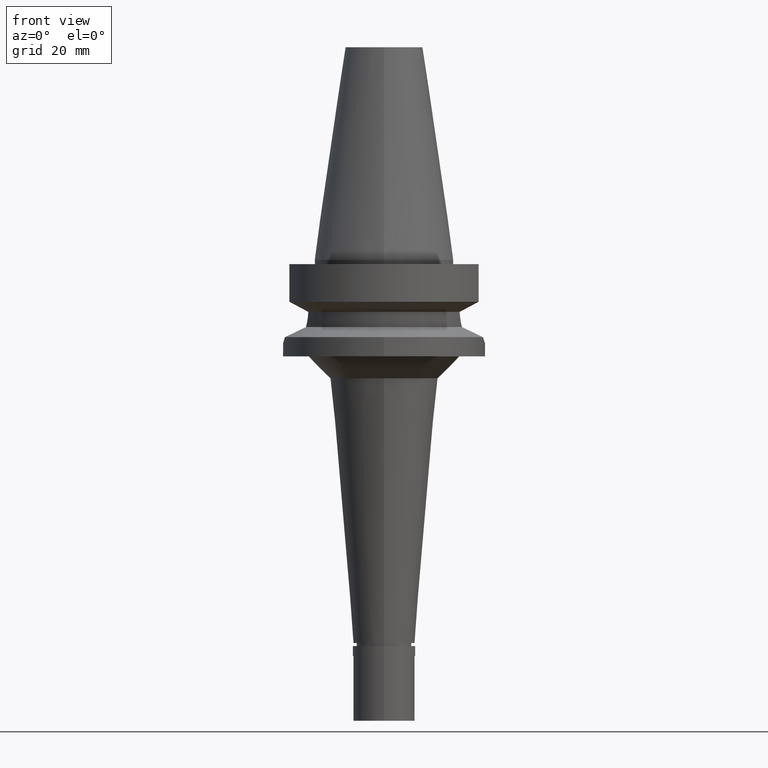
[diagram: clean part render]
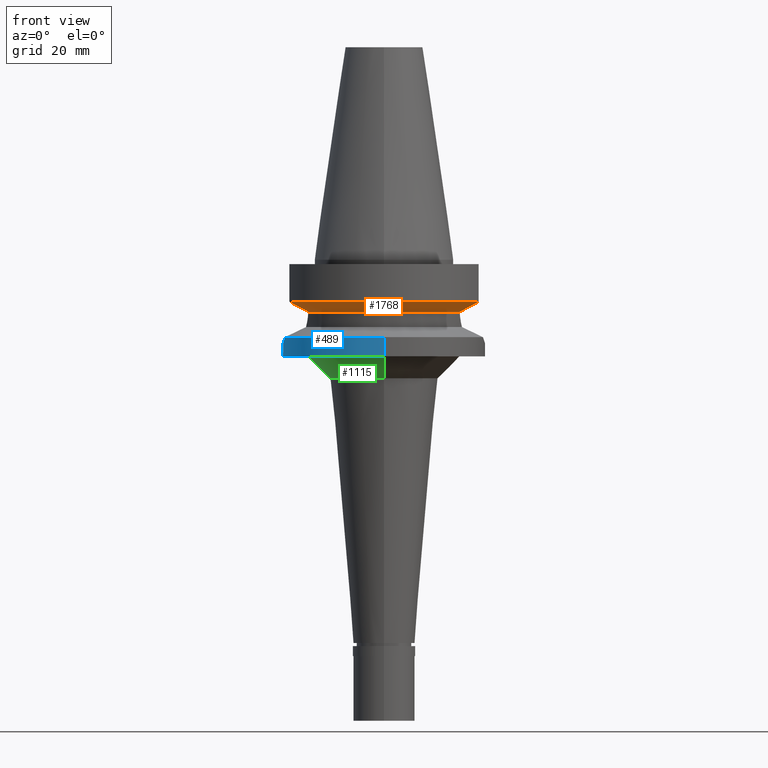
[diagram: same view with three faces highlighted in distinct colors, each labeled with its STEP entity id]
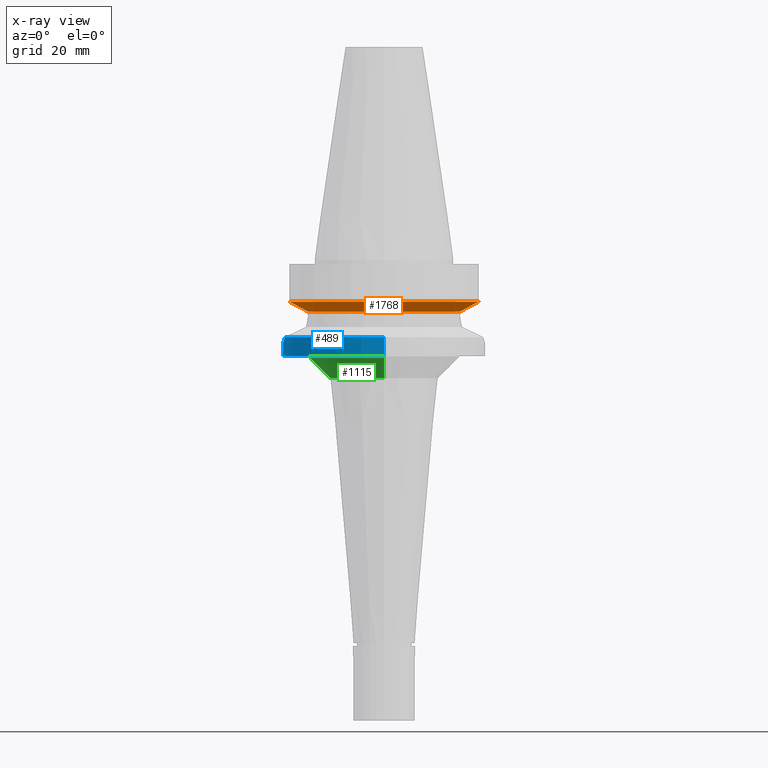
[diagram: x-ray of the same camera — body ghosted, the three highlighted faces saturated]
A machine part, front view with three faces highlighted in distinct colors.
The next image is the same camera in x-ray (body ghosted, the three faces saturated) — at least one of them is partly hidden behind the body in this view.
Their STEP definitions:

[orange] entity #1768 — the highlighted conical surface has half-angle 60 deg.
#12 = ORIENTED_EDGE ( 'NONE', *, *, #1299, .F. ) ;
#50 = CARTESIAN_POINT ( 'NONE',  ( -17.23531622871000124, -7.996491146968002006, -11.87660607765999998 ) ) ;
#155 = CARTESIAN_POINT ( 'NONE',  ( -18.96738966519999892, -8.049994318072998922, -10.95000099924999937 ) ) ;
#193 = DIRECTION ( 'NONE',  ( 0.0000000000000000000, 0.0000000000000000000, 1.000000000000000000 ) ) ;
#245 = VERTEX_POINT ( 'NONE', #1227 ) ;
#264 = CARTESIAN_POINT ( 'NONE',  ( 18.96736186693999926, -8.050001277873001015, -10.94999977540000025 ) ) ;
#267 = AXIS2_PLACEMENT_3D ( 'NONE', #1894, #2778, #997 ) ;
#434 = CIRCLE ( 'NONE', #798, 23.00000000000000000 ) ;
#469 = CARTESIAN_POINT ( 'NONE',  ( -21.54524325238000060, -8.049999577366000025, -9.567211146628999074 ) ) ;
#574 = CARTESIAN_POINT ( 'NONE',  ( 17.72682660578003322, -8.027186146920309184, -11.61172867019492472 ) ) ;
#599 = VERTEX_POINT ( 'NONE', #469 ) ;
#623 = DIRECTION ( 'NONE',  ( 0.0000000000000000000, -1.000000000000000000, 0.0000000000000000000 ) ) ;
#692 = DIRECTION ( 'NONE',  ( 0.0000000000000000000, 1.000000000000000000, 0.0000000000000000000 ) ) ;
#772 = CARTESIAN_POINT ( 'NONE',  ( -18.96738966519999892, -8.049994318072998922, -10.95000099924999937 ) ) ;
#798 = AXIS2_PLACEMENT_3D ( 'NONE', #2731, #193, #623 ) ;
#860 = CARTESIAN_POINT ( 'NONE',  ( -21.54524325238000060, -8.049999577366000025, -9.567211146628999074 ) ) ;
#930 = AXIS2_PLACEMENT_3D ( 'NONE', #1125, #1386, #692 ) ;
#935 = VERTEX_POINT ( 'NONE', #1016 ) ;
#946 = EDGE_CURVE ( 'NONE', #245, #1634, #1544, .T. ) ;
#968 = CARTESIAN_POINT ( 'NONE',  ( 21.54524309446999908, -8.050000000002000888, -9.567208369710998639 ) ) ;
#971 = ORIENTED_EDGE ( 'NONE', *, *, #1230, .F. ) ;
#997 = DIRECTION ( 'NONE',  ( 0.0000000000000000000, -1.000000000000000000, 0.0000000000000000000 ) ) ;
#1016 = CARTESIAN_POINT ( 'NONE',  ( 17.23531135313999840, -7.996501749111999402, -11.87660739352999961 ) ) ;
#1040 = B_SPLINE_CURVE_WITH_KNOTS ( 'NONE', 3,
 ( #264, #2320, #2765, #1425 ),
 .UNSPECIFIED., .F., .F.,
 ( 4, 4 ),
 ( 0.0000000000000000000, 1.000000000000000000 ),
 .UNSPECIFIED. ) ;
#1103 = CARTESIAN_POINT ( 'NONE',  ( 18.96736186693999926, -8.050001277873001015, -10.94999977540000025 ) ) ;
#1125 = CARTESIAN_POINT ( 'NONE',  ( 0.0000000000000000000, 1.093341284896999988E-14, -10.72190890808999875 ) ) ;
#1138 = CARTESIAN_POINT ( 'NONE',  ( -19.78174442233868291, -8.049991903459016385, -10.51718567402809690 ) ) ;
#1169 = ORIENTED_EDGE ( 'NONE', *, *, #1214, .T. ) ;
#1214 = EDGE_CURVE ( 'NONE', #599, #1634, #2643, .T. ) ;
#1227 = CARTESIAN_POINT ( 'NONE',  ( -17.23531622871000124, -7.996491146968002006, -11.87660607765999998 ) ) ;
#1230 = EDGE_CURVE ( 'NONE', #599, #1296, #434, .T. ) ;
#1296 = VERTEX_POINT ( 'NONE', #968 ) ;
#1299 = EDGE_CURVE ( 'NONE', #935, #245, #1896, .T. ) ;
#1314 = CARTESIAN_POINT ( 'NONE',  ( 18.96736186693999926, -8.050001277873001015, -10.94999977540000025 ) ) ;
#1337 = ORIENTED_EDGE ( 'NONE', *, *, #1519, .T. ) ;
#1386 = DIRECTION ( 'NONE',  ( 0.0000000000000000000, 0.0000000000000000000, 1.000000000000000000 ) ) ;
#1401 = CARTESIAN_POINT ( 'NONE',  ( -17.72598984667062538, -8.027133614841753584, -11.61218199030514597 ) ) ;
#1425 = CARTESIAN_POINT ( 'NONE',  ( 21.54524309446999908, -8.050000000002000888, -9.567208369710998639 ) ) ;
#1480 = CARTESIAN_POINT ( 'NONE',  ( 17.23531135313999840, -7.996501749111999402, -11.87660739352999961 ) ) ;
#1519 = EDGE_CURVE ( 'NONE', #2848, #1296, #1040, .T. ) ;
#1535 = ORIENTED_EDGE ( 'NONE', *, *, #946, .F. ) ;
#1544 = B_SPLINE_CURVE_WITH_KNOTS ( 'NONE', 3,
 ( #50, #1401, #1650, #2340 ),
 .UNSPECIFIED., .F., .F.,
 ( 4, 4 ),
 ( 0.0000000000000000000, 1.000000000000000000 ),
 .UNSPECIFIED. ) ;
#1634 = VERTEX_POINT ( 'NONE', #155 ) ;
#1650 = CARTESIAN_POINT ( 'NONE',  ( -18.30334765883396031, -8.049999956192328554, -11.30291652902797850 ) ) ;
#1768 = ADVANCED_FACE ( 'NONE', ( #2049 ), #1850, .T. ) ;
#1779 = CARTESIAN_POINT ( 'NONE',  ( -20.64098922449849383, -8.049999155425599184, -10.05625859809538980 ) ) ;
#1850 = CONICAL_SURFACE ( 'NONE', #930, 21.00000000000000000, 1.047197551196400456 ) ;
#1894 = CARTESIAN_POINT ( 'NONE',  ( 0.0000000000000000000, 1.093341284896999988E-14, -11.87660944646999894 ) ) ;
#1896 = CIRCLE ( 'NONE', #267, 19.00000000000000000 ) ;
#2049 = FACE_OUTER_BOUND ( 'NONE', #2696, .T. ) ;
#2197 = ORIENTED_EDGE ( 'NONE', *, *, #2714, .F. ) ;
#2227 = CARTESIAN_POINT ( 'NONE',  ( 18.30417677704669899, -8.050000009833846448, -11.30245973841521945 ) ) ;
#2320 = CARTESIAN_POINT ( 'NONE',  ( 19.78176446227738339, -8.050001299918164932, -10.51717305795229151 ) ) ;
#2340 = CARTESIAN_POINT ( 'NONE',  ( -18.96738966519999892, -8.049994318072998922, -10.95000099924999937 ) ) ;
#2539 = B_SPLINE_CURVE_WITH_KNOTS ( 'NONE', 3,
 ( #1314, #2227, #574, #1480 ),
 .UNSPECIFIED., .F., .F.,
 ( 4, 4 ),
 ( 0.0000000000000000000, 1.000000000000000000 ),
 .UNSPECIFIED. ) ;
#2643 = B_SPLINE_CURVE_WITH_KNOTS ( 'NONE', 3,
 ( #860, #1779, #1138, #772 ),
 .UNSPECIFIED., .F., .F.,
 ( 4, 4 ),
 ( 0.0000000000000000000, 1.000000000000000000 ),
 .UNSPECIFIED. ) ;
#2696 = EDGE_LOOP ( 'NONE', ( #1535, #12, #2197, #1337, #971, #1169 ) ) ;
#2714 = EDGE_CURVE ( 'NONE', #2848, #935, #2539, .T. ) ;
#2731 = CARTESIAN_POINT ( 'NONE',  ( 0.0000000000000000000, 1.093341284896999988E-14, -9.567208369710998639 ) ) ;
#2765 = CARTESIAN_POINT ( 'NONE',  ( 20.64101735201231591, -8.050004185258069711, -10.05624233374762966 ) ) ;
#2778 = DIRECTION ( 'NONE',  ( 0.0000000000000000000, 0.0000000000000000000, -1.000000000000000000 ) ) ;
#2848 = VERTEX_POINT ( 'NONE', #1103 ) ;

[blue] entity #489 — the highlighted cylindrical surface (partial cylindrical patch) has radius 23 mm, axis along (0, 0, -1).
#75 = CARTESIAN_POINT ( 'NONE',  ( -22.63166614962851497, 4.117127006979952597, -17.88191370993376594 ) ) ;
#83 = CARTESIAN_POINT ( 'NONE',  ( 0.0000000000000000000, 23.00000000000000000, -22.00000000000000000 ) ) ;
#90 = CARTESIAN_POINT ( 'NONE',  ( -23.00030100865154381, 0.3640111239025690670, -19.00088867300707918 ) ) ;
#91 = ORIENTED_EDGE ( 'NONE', *, *, #1002, .F. ) ;
#135 = CARTESIAN_POINT ( 'NONE',  ( -22.81109336931087128, -3.019388381317360537, -18.44551689367371594 ) ) ;
#140 = CARTESIAN_POINT ( 'NONE',  ( -22.77692701622773441, 3.197994040606511490, -18.34023868707903304 ) ) ;
#166 = VERTEX_POINT ( 'NONE', #83 ) ;
#225 = DIRECTION ( 'NONE',  ( -0.9807766722643714852, 0.1951335930638943839, 0.0000000000000000000 ) ) ;
#259 = DIRECTION ( 'NONE',  ( 0.0000000000000000000, 0.0000000000000000000, -1.000000000000000000 ) ) ;
#277 = DIRECTION ( 'NONE',  ( 0.0000000000000000000, -2.603192430893000129E-14, -1.000000000000000000 ) ) ;
#301 = AXIS2_PLACEMENT_3D ( 'NONE', #2932, #259, #225 ) ;
#312 = ORIENTED_EDGE ( 'NONE', *, *, #2797, .T. ) ;
#322 = CARTESIAN_POINT ( 'NONE',  ( -22.95173702287733519, 1.537841787981212072, -18.86160978796326759 ) ) ;
#339 = CARTESIAN_POINT ( 'NONE',  ( 0.0000000000000000000, 1.022848384030000006E-14, -17.63279163029000074 ) ) ;
#370 = CARTESIAN_POINT ( 'NONE',  ( 0.0000000000000000000, 1.908856965831000054E-14, 55.87000000000000455 ) ) ;
#375 = CIRCLE ( 'NONE', #1864, 23.00000000000000000 ) ;
#392 = CARTESIAN_POINT ( 'NONE',  ( -22.55786346208000026, 4.488072640470000430, -17.63279163029000074 ) ) ;
#398 = CARTESIAN_POINT ( 'NONE',  ( -22.92476252567477957, -1.861473657205100274, -18.78245538427065497 ) ) ;
#415 = CARTESIAN_POINT ( 'NONE',  ( -22.95957091628987712, -1.374709921344555941, -18.88419208867407306 ) ) ;
#454 = CIRCLE ( 'NONE', #1012, 23.00000000000000000 ) ;
#463 = EDGE_LOOP ( 'NONE', ( #1064, #2151, #312, #91, #953, #1393 ) ) ;
#487 = DIRECTION ( 'NONE',  ( 0.0000000000000000000, 1.000000000000000000, 0.0000000000000000000 ) ) ;
#489 = ADVANCED_FACE ( 'NONE', ( #1711 ), #1983, .T. ) ;
#532 = CARTESIAN_POINT ( 'NONE',  ( 0.0000000000000000000, 23.00000000000000000, -17.63279163029000074 ) ) ;
#736 = VERTEX_POINT ( 'NONE', #1903 ) ;
#747 = CARTESIAN_POINT ( 'NONE',  ( -22.80156403116696495, 3.017823929577967856, -18.41532701780329617 ) ) ;
#761 = CARTESIAN_POINT ( 'NONE',  ( -22.86728685073485678, 2.468655759102178493, -18.61236316750002118 ) ) ;
#813 = EDGE_CURVE ( 'NONE', #736, #2067, #375, .T. ) ;
#847 = VERTEX_POINT ( 'NONE', #392 ) ;
#863 = CARTESIAN_POINT ( 'NONE',  ( 0.0000000000000000000, -23.00000000000000000, -17.63279163029000074 ) ) ;
#868 = CARTESIAN_POINT ( 'NONE',  ( -22.70363253641111356, -3.755410952664218094, -18.12483732880510345 ) ) ;
#953 = ORIENTED_EDGE ( 'NONE', *, *, #813, .T. ) ;
#967 = CARTESIAN_POINT ( 'NONE',  ( 0.0000000000000000000, 23.00000000000000000, -17.63279163029000074 ) ) ;
#998 = LINE ( 'NONE', #532, #2458 ) ;
#1002 = EDGE_CURVE ( 'NONE', #736, #1123, #1371, .T. ) ;
#1012 = AXIS2_PLACEMENT_3D ( 'NONE', #1829, #1613, #487 ) ;
#1052 = CARTESIAN_POINT ( 'NONE',  ( -22.92234858100387740, 1.929656484250231507, -18.77578670659507409 ) ) ;
#1064 = ORIENTED_EDGE ( 'NONE', *, *, #2886, .T. ) ;
#1123 = VERTEX_POINT ( 'NONE', #1317 ) ;
#1143 = DIRECTION ( 'NONE',  ( 0.0000000000000000000, 2.277793377031000010E-14, -1.000000000000000000 ) ) ;
#1232 = CARTESIAN_POINT ( 'NONE',  ( -22.99071424050199042, 0.7558957595882385139, -18.97416029267199633 ) ) ;
#1237 = VECTOR ( 'NONE', #1143, 1000.000000000000000 ) ;
#1282 = DIRECTION ( 'NONE',  ( 0.0000000000000000000, 0.0000000000000000000, -1.000000000000000000 ) ) ;
#1317 = CARTESIAN_POINT ( 'NONE',  ( 0.0000000000000000000, -23.00000000000000000, -22.00000000000000000 ) ) ;
#1343 = CARTESIAN_POINT ( 'NONE',  ( -22.89692764979168160, -2.176931398291872988, -18.70034884155313648 ) ) ;
#1371 = LINE ( 'NONE', #863, #1237 ) ;
#1393 = ORIENTED_EDGE ( 'NONE', *, *, #1930, .F. ) ;
#1587 = CIRCLE ( 'NONE', #301, 23.00000000000001066 ) ;
#1613 = DIRECTION ( 'NONE',  ( 0.0000000000000000000, 0.0000000000000000000, 1.000000000000000000 ) ) ;
#1663 = CARTESIAN_POINT ( 'NONE',  ( -22.83484025492528957, 2.752012952923164502, -18.51557280680798812 ) ) ;
#1690 = CARTESIAN_POINT ( 'NONE',  ( -22.55786346208000026, 4.488072640470000430, -17.63279163029000074 ) ) ;
#1708 = DIRECTION ( 'NONE',  ( 0.0000000000000000000, -1.000000000000000000, 0.0000000000000000000 ) ) ;
#1711 = FACE_OUTER_BOUND ( 'NONE', #463, .T. ) ;
#1750 = CARTESIAN_POINT ( 'NONE',  ( -22.88503689413928655, -2.297902107733971633, -18.66510087869969681 ) ) ;
#1755 = DIRECTION ( 'NONE',  ( 0.0000000000000000000, -1.000000000000000000, 0.0000000000000000000 ) ) ;
#1786 = CARTESIAN_POINT ( 'NONE',  ( -22.55786346208000026, -4.488072640470000430, -17.63279163029000074 ) ) ;
#1829 = CARTESIAN_POINT ( 'NONE',  ( 0.0000000000000000000, 1.908856965831000054E-14, -22.00000000000000000 ) ) ;
#1857 = EDGE_CURVE ( 'NONE', #2394, #166, #998, .T. ) ;
#1864 = AXIS2_PLACEMENT_3D ( 'NONE', #339, #2172, #1708 ) ;
#1903 = CARTESIAN_POINT ( 'NONE',  ( 0.0000000000000000000, -23.00000000000000000, -17.63279163029000074 ) ) ;
#1914 = CARTESIAN_POINT ( 'NONE',  ( -22.85055854214183313, 2.620214278859905654, -18.56259996990543470 ) ) ;
#1930 = EDGE_CURVE ( 'NONE', #847, #2067, #2328, .T. ) ;
#1983 = CYLINDRICAL_SURFACE ( 'NONE', #2180, 23.00000000000000000 ) ;
#2011 = CARTESIAN_POINT ( 'NONE',  ( -22.91266036962831976, -2.007267663058240004, -18.74685972743925788 ) ) ;
#2067 = VERTEX_POINT ( 'NONE', #2380 ) ;
#2145 = CARTESIAN_POINT ( 'NONE',  ( -22.88060478888589344, 2.341734691497258325, -18.65191010759255619 ) ) ;
#2151 = ORIENTED_EDGE ( 'NONE', *, *, #1857, .T. ) ;
#2172 = DIRECTION ( 'NONE',  ( 0.0000000000000000000, 0.0000000000000000000, -1.000000000000000000 ) ) ;
#2180 = AXIS2_PLACEMENT_3D ( 'NONE', #370, #1282, #1755 ) ;
#2328 = B_SPLINE_CURVE_WITH_KNOTS ( 'NONE', 3,
 ( #1690, #75, #2798, #140, #747, #1663, #1914, #761, #2587, #2364, #2145, #1052, #322, #1232, #90, #2828, #2455, #415, #2473, #398, #2011, #1343, #2890, #1750, #2919, #135, #868, #1786 ),
 .UNSPECIFIED., .F., .F.,
 ( 4, 2, 2, 1, 1, 2, 2, 2, 2, 2, 2, 1, 1, 2, 2, 4 ),
 ( 0.0000000000000000000, 0.1250000000000019151, 0.1875000000000025813, 0.2187500000000029976, 0.2343750000000033584, 0.2421875000000033862, 0.2500000000000033862, 0.3750000000000014988, 0.4999999999999996114, 0.6249999999999976685, 0.6874999999999967804, 0.7187499999999962252, 0.7343749999999957812, 0.7421874999999957812, 0.7499999999999957812, 1.000000000000000000 ),
 .UNSPECIFIED. ) ;
#2364 = CARTESIAN_POINT ( 'NONE',  ( -22.87858410011765997, 2.361345282452289140, -18.64591136295556595 ) ) ;
#2380 = CARTESIAN_POINT ( 'NONE',  ( -22.55786346208000026, -4.488072640470000430, -17.63279163029000074 ) ) ;
#2394 = VERTEX_POINT ( 'NONE', #967 ) ;
#2455 = CARTESIAN_POINT ( 'NONE',  ( -22.98953910867644268, -0.7906783740719491860, -18.97073896720625186 ) ) ;
#2458 = VECTOR ( 'NONE', #277, 1000.000000000000000 ) ;
#2473 = CARTESIAN_POINT ( 'NONE',  ( -22.94712279458777715, -1.569623663729881491, -18.84800909384732392 ) ) ;
#2587 = CARTESIAN_POINT ( 'NONE',  ( -22.87411119159768091, 2.404201213955817096, -18.63263104491174005 ) ) ;
#2797 = EDGE_CURVE ( 'NONE', #166, #1123, #454, .T. ) ;
#2798 = CARTESIAN_POINT ( 'NONE',  ( -22.69565737410901463, 3.744532744290726356, -18.08737693203545405 ) ) ;
#2828 = CARTESIAN_POINT ( 'NONE',  ( -22.99968300664122012, -0.4023091557197424062, -18.99906577602038027 ) ) ;
#2886 = EDGE_CURVE ( 'NONE', #847, #2394, #1587, .T. ) ;
#2890 = CARTESIAN_POINT ( 'NONE',  ( -22.88983929747974955, -2.249530487346984131, -18.67934332603602599 ) ) ;
#2919 = CARTESIAN_POINT ( 'NONE',  ( -22.88240697926265099, -2.323919709307238790, -18.65729411119311010 ) ) ;
#2932 = CARTESIAN_POINT ( 'NONE',  ( 0.0000000000000000000, 1.022848384030000006E-14, -17.63279163029000074 ) ) ;

[green] entity #1115 — the highlighted conical surface has half-angle 45 deg.
#60 = CARTESIAN_POINT ( 'NONE',  ( 0.0000000000000000000, 0.0000000000000000000, -27.00000000000000000 ) ) ;
#133 = CARTESIAN_POINT ( 'NONE',  ( 0.0000000000000000000, -12.27556641060999887, -27.00000000000000000 ) ) ;
#141 = ORIENTED_EDGE ( 'NONE', *, *, #1572, .F. ) ;
#357 = AXIS2_PLACEMENT_3D ( 'NONE', #60, #531, #1631 ) ;
#466 = CIRCLE ( 'NONE', #2560, 17.27556641061000064 ) ;
#531 = DIRECTION ( 'NONE',  ( 0.0000000000000000000, 0.0000000000000000000, -1.000000000000000000 ) ) ;
#564 = ORIENTED_EDGE ( 'NONE', *, *, #2376, .T. ) ;
#575 = DIRECTION ( 'NONE',  ( 0.0000000000000000000, 0.0000000000000000000, 1.000000000000000000 ) ) ;
#706 = VERTEX_POINT ( 'NONE', #1206 ) ;
#754 = AXIS2_PLACEMENT_3D ( 'NONE', #2845, #575, #2386 ) ;
#814 = VERTEX_POINT ( 'NONE', #133 ) ;
#939 = DIRECTION ( 'NONE',  ( 0.0000000000000000000, 0.7071067811863974706, -0.7071067811866975639 ) ) ;
#969 = CARTESIAN_POINT ( 'NONE',  ( 0.0000000000000000000, -17.27556641061000064, -22.00000000000000000 ) ) ;
#1015 = FACE_OUTER_BOUND ( 'NONE', #2301, .T. ) ;
#1042 = VERTEX_POINT ( 'NONE', #1384 ) ;
#1115 = ADVANCED_FACE ( 'NONE', ( #1015 ), #2335, .T. ) ;
#1136 = ORIENTED_EDGE ( 'NONE', *, *, #1264, .T. ) ;
#1206 = CARTESIAN_POINT ( 'NONE',  ( 0.0000000000000000000, 17.27556641061000064, -22.00000000000000000 ) ) ;
#1231 = CARTESIAN_POINT ( 'NONE',  ( 0.0000000000000000000, 17.27556641061000064, -22.00000000000000000 ) ) ;
#1264 = EDGE_CURVE ( 'NONE', #1042, #706, #466, .T. ) ;
#1308 = CIRCLE ( 'NONE', #357, 12.27556641060999887 ) ;
#1384 = CARTESIAN_POINT ( 'NONE',  ( 0.0000000000000000000, -17.27556641061000064, -22.00000000000000000 ) ) ;
#1549 = EDGE_CURVE ( 'NONE', #814, #2084, #1308, .T. ) ;
#1572 = EDGE_CURVE ( 'NONE', #1042, #814, #2779, .T. ) ;
#1631 = DIRECTION ( 'NONE',  ( 0.0000000000000000000, -1.000000000000000000, 0.0000000000000000000 ) ) ;
#1661 = DIRECTION ( 'NONE',  ( 0.0000000000000000000, -0.7071067811863974706, -0.7071067811866975639 ) ) ;
#1672 = LINE ( 'NONE', #1231, #2461 ) ;
#1776 = ORIENTED_EDGE ( 'NONE', *, *, #1549, .F. ) ;
#2084 = VERTEX_POINT ( 'NONE', #2802 ) ;
#2111 = DIRECTION ( 'NONE',  ( 0.0000000000000000000, -1.000000000000000000, 0.0000000000000000000 ) ) ;
#2301 = EDGE_LOOP ( 'NONE', ( #1776, #141, #1136, #564 ) ) ;
#2334 = DIRECTION ( 'NONE',  ( 0.0000000000000000000, 0.0000000000000000000, -1.000000000000000000 ) ) ;
#2335 = CONICAL_SURFACE ( 'NONE', #754, 14.77556641060999887, 0.7853981633972997312 ) ;
#2376 = EDGE_CURVE ( 'NONE', #706, #2084, #1672, .T. ) ;
#2386 = DIRECTION ( 'NONE',  ( 0.0000000000000000000, 1.000000000000000000, 0.0000000000000000000 ) ) ;
#2461 = VECTOR ( 'NONE', #1661, 1000.000000000000114 ) ;
#2558 = CARTESIAN_POINT ( 'NONE',  ( 0.0000000000000000000, 0.0000000000000000000, -22.00000000000000000 ) ) ;
#2560 = AXIS2_PLACEMENT_3D ( 'NONE', #2558, #2334, #2111 ) ;
#2779 = LINE ( 'NONE', #969, #2843 ) ;
#2802 = CARTESIAN_POINT ( 'NONE',  ( 0.0000000000000000000, 12.27556641060999887, -27.00000000000000000 ) ) ;
#2843 = VECTOR ( 'NONE', #939, 1000.000000000000114 ) ;
#2845 = CARTESIAN_POINT ( 'NONE',  ( 0.0000000000000000000, 0.0000000000000000000, -24.50000000000000000 ) ) ;